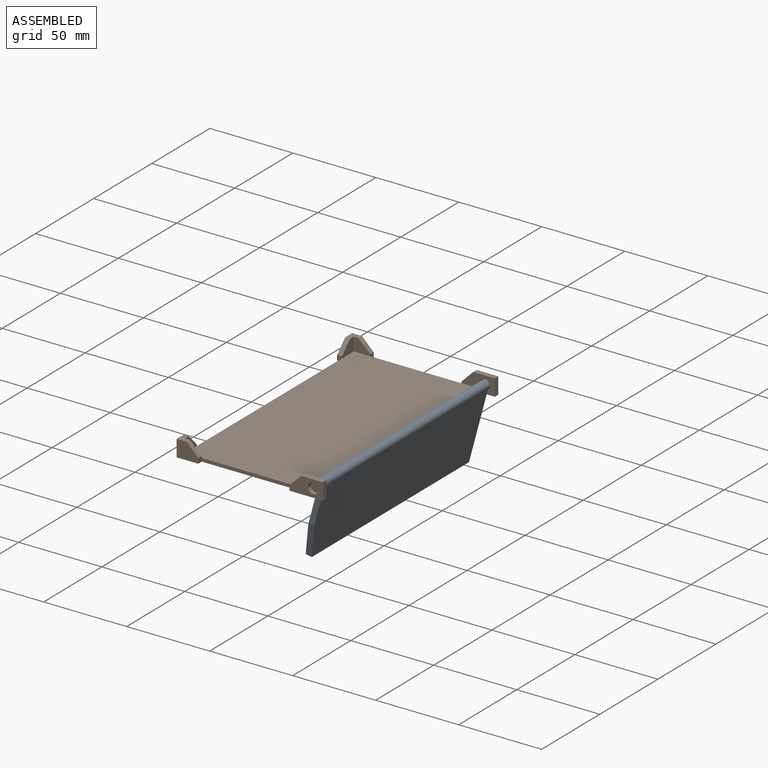
[diagram: assembled view]
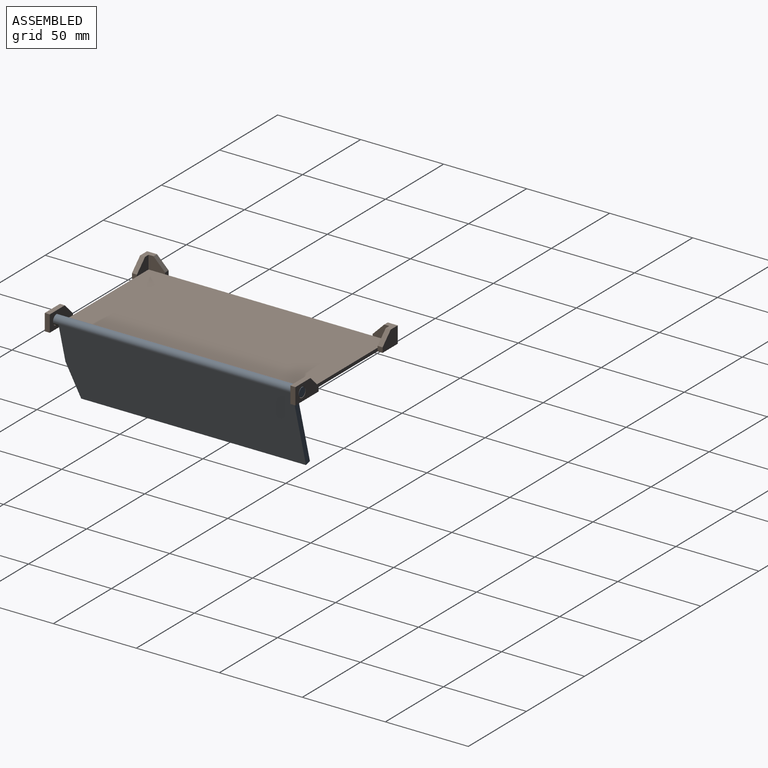
[diagram: assembled view, second angle]
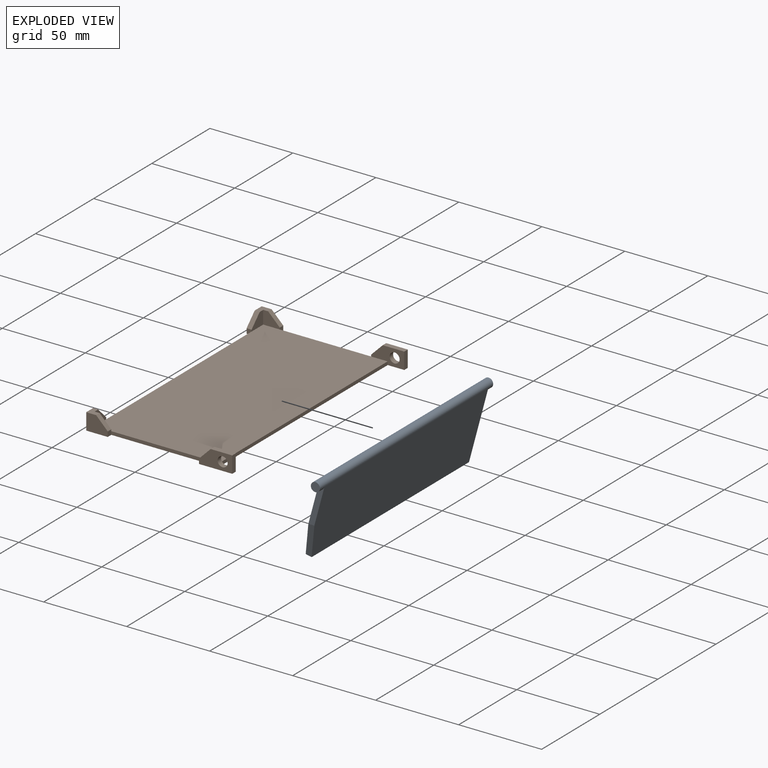
[diagram: exploded view]
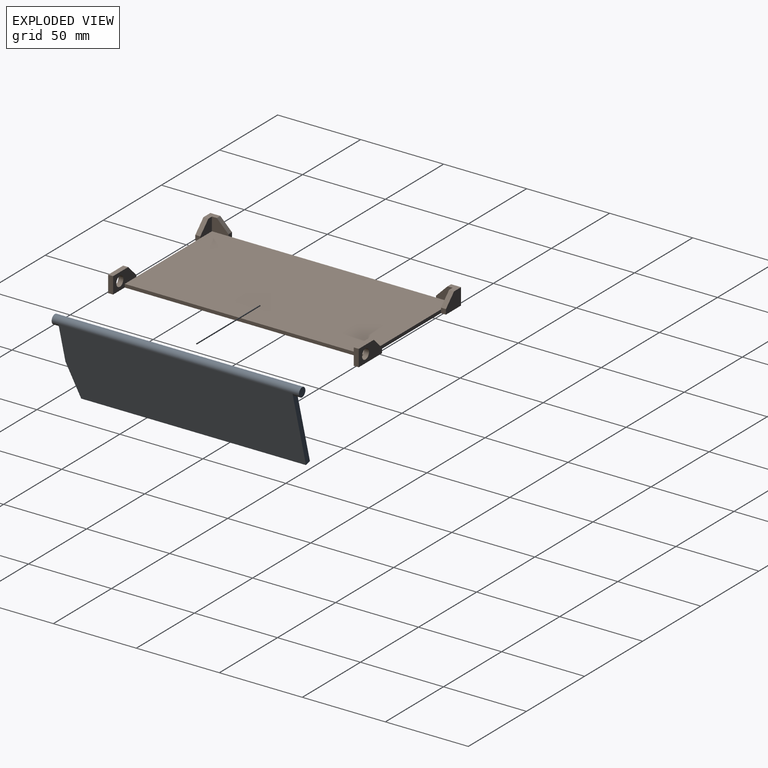
[diagram: exploded view, second angle]
ASSEMBLY  parts=2 mates=2
PART A: 9 faces, bbox 15.1x149x46.9 mm
  f0: cylinder r=2.75mm len=149mm, axis (0,-1,0), area 1858.4mm2, adj f1,f2,f3,f4,f6,f7
  f1: plane 5.5x5.5mm, normal (0,1,0), area 23.8mm2, adj f0
  f2: plane 5.5x5.5mm, normal (0,-1,0), area 23.8mm2, adj f0
  f3: plane 141x43.47mm, normal (0.97,0,-0.26), area 6285.1mm2, adj f0,f5,f6,f7,f8
  f4: plane 141x40.91mm, normal (-0.97,0,0.26), area 5917.2mm2, adj f0,f5,f6,f7,f8
  f5: plane 135.67x3.38mm, normal (-0.26,0,-0.97), area 474.4mm2, adj f3,f4,f6,f8
  f6: plane 43.47x15.03mm, normal (0,1,0), area 149.5mm2, adj f0,f3,f4,f5
  f7: plane 22.69x9.7mm, normal (0,-1,0), area 75.9mm2, adj f0,f3,f4,f8
  f8: plane 20.78x8.95mm, normal (0,-0.97,-0.26), area 76.3mm2, adj f3,f4,f5,f7
PART B: 38 faces, bbox 88x151x10 mm
  f0: plane 55x2mm, normal (0,-1,0), area 110mm2, adj f4,f5,f18,f26
  f1: plane 55x2mm, normal (0,1,0), area 110mm2, adj f4,f5,f8,f23
  f2: plane 125x2mm, normal (-1,0,0), area 250mm2, adj f4,f5,f11,f15
  f3: plane 145x2mm, normal (1,0,0), area 290mm2, adj f4,f5,f20,f25
  f4: plane 145x75mm, normal (0,0,1), area 10875mm2, adj f0,f1,f2,f3,f6,f7,f13,f14
  f5: plane 151x88mm, normal (0,0,-1), area 11133mm2, adj f0,f1,f2,f3,f8,f9,f10,f11
  f6: plane 10x8mm, normal (0,-1,0), area 55.5mm2, adj f4,f7,f8,f12,f32
  f7: plane 10x8mm, normal (1,0,0), area 55.5mm2, adj f4,f6,f11,f12,f33
  f8: plane 3x3mm, normal (1,0,0), area 9mm2, adj f1,f5,f6,f9,f32
  f9: plane 13x10mm, normal (0,1,0), area 105.5mm2, adj f5,f8,f10,f12,f32
  f10: plane 13x10mm, normal (-1,0,0), area 105.5mm2, adj f5,f9,f11,f12,f33
  f11: plane 3x3mm, normal (0,-1,0), area 9mm2, adj f2,f5,f7,f10,f33
  f12: plane 6x6mm, normal (0,0,1), area 27mm2, adj f6,f7,f9,f10,f32,f33
  f13: plane 10x8mm, normal (0,1,0), area 55.5mm2, adj f4,f14,f18,f19,f35
  f14: plane 10x8mm, normal (1,0,0), area 55.5mm2, adj f4,f13,f15,f19,f34
  f15: plane 3x3mm, normal (0,1,0), area 9mm2, adj f2,f5,f14,f16,f34
  f16: plane 13x10mm, normal (-1,0,0), area 105.5mm2, adj f5,f15,f17,f19,f34
  f17: plane 13x10mm, normal (0,-1,0), area 105.5mm2, adj f5,f16,f18,f19,f35
  f18: plane 3x3mm, normal (1,0,0), area 9mm2, adj f0,f5,f13,f17,f35
  f19: plane 6x6mm, normal (0,0,1), area 27mm2, adj f13,f14,f16,f17,f34,f35
  f20: plane 20x10mm, normal (0,-1,0), area 127.2mm2, adj f3,f4,f5,f21,f23,f24,f31,f37
  f21: plane 10x3mm, normal (1,0,0), area 30mm2, adj f5,f20,f22,f24
  f22: plane 20x10mm, normal (0,1,0), area 147.2mm2, adj f5,f21,f23,f24,f31,f37
  f23: plane 3x3mm, normal (-1,0,0), area 9mm2, adj f1,f5,f20,f22,f31
  f24: plane 13x3mm, normal (0,0,1), area 39mm2, adj f20,f21,f22,f31
  f25: plane 20x10mm, normal (0,1,0), area 127.2mm2, adj f3,f4,f5,f26,f28,f29,f30,f36
  f26: plane 3x3mm, normal (-1,0,0), area 9mm2, adj f0,f5,f25,f27,f30
  f27: plane 20x10mm, normal (0,-1,0), area 147.2mm2, adj f5,f26,f28,f29,f30,f36
  f28: plane 10x3mm, normal (1,0,0), area 30mm2, adj f5,f25,f27,f29
  f29: plane 13x3mm, normal (0,0,1), area 39mm2, adj f25,f27,f28,f30
  f30: plane 7x7mm, normal (-0.71,0,0.71), area 29.7mm2, adj f25,f26,f27,f29
  f31: plane 7x7mm, normal (-0.71,0,0.71), area 29.7mm2, adj f20,f22,f23,f24
  f32: plane 7x7mm, normal (0.71,0,0.71), area 29.7mm2, adj f6,f8,f9,f12
  f33: plane 7x7mm, normal (0,-0.71,0.71), area 29.7mm2, adj f7,f10,f11,f12
  f34: plane 7x7mm, normal (0,0.71,0.71), area 29.7mm2, adj f14,f15,f16,f19
  f35: plane 7x7mm, normal (0.71,0,0.71), area 29.7mm2, adj f13,f17,f18,f19
  f36: cylinder r=3mm len=6mm, axis (0,-1,0), area 56.5mm2, adj f25,f27
  f37: cylinder r=3mm len=6mm, axis (0,-1,0), area 56.5mm2, adj f20,f22
PLACE A t=(98.97,-21.17,0)mm
PLACE B t=(98.97,-22.17,0)mm
MATE cylindrical B.f36 <-> A.f0  axis (0,-1,0) through (140.66,-97.67,5)mm
MATE planar B.f22 <-> A.f0  axis (0,1,0) through (146.47,53.33,0)mm
